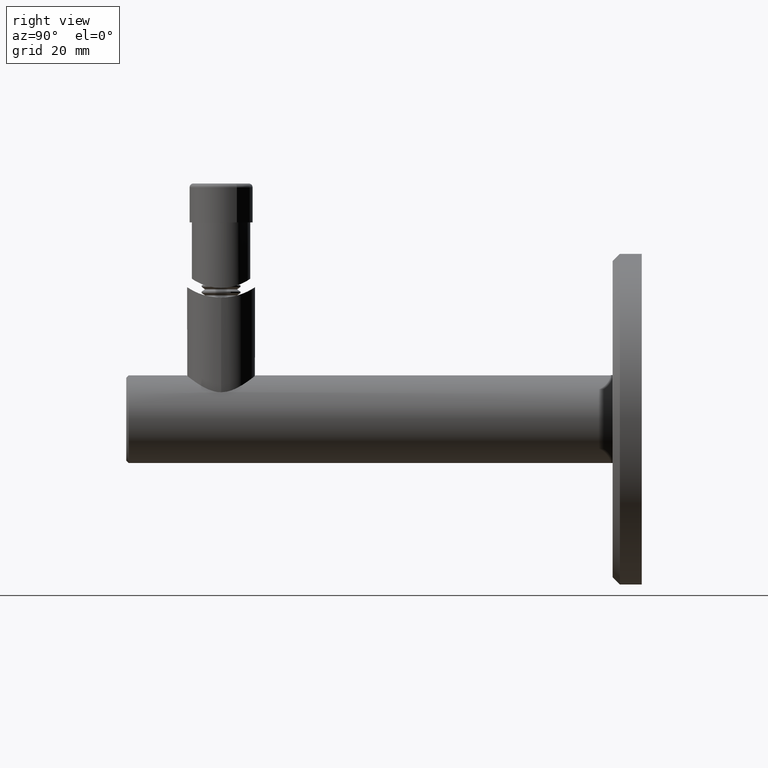
[diagram: clean part render]
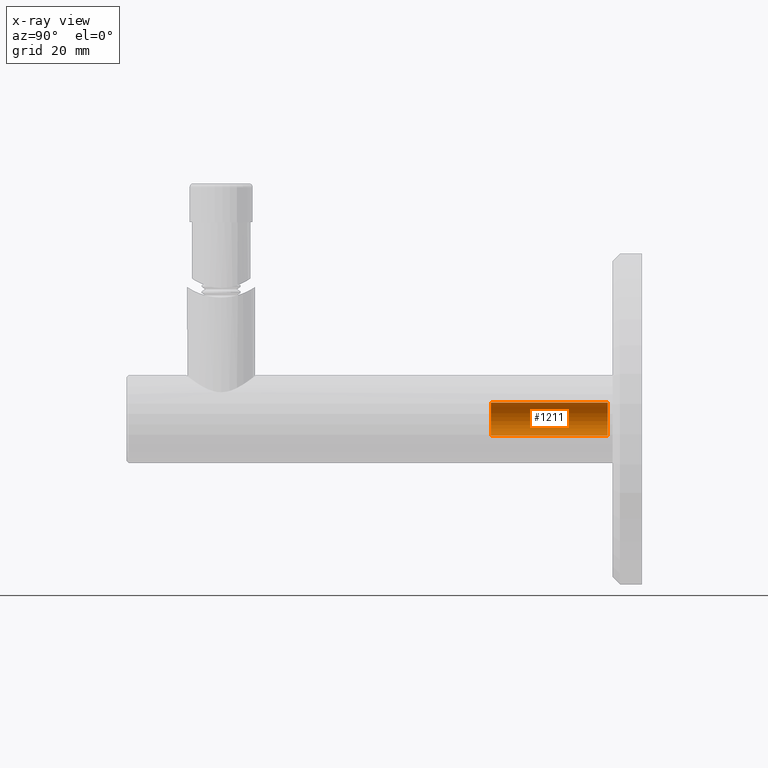
[diagram: x-ray — body ghosted, one internal face saturated and labeled with its STEP entity id]
A machine part, right view, then the same camera in x-ray: the body is ghosted and one INTERNAL B-rep face — a face not visible from any outside direction — is saturated and labeled: STEP entity #1211.
In plain terms, the highlighted cylindrical surface (edge-blend (fillet) strip) has radius 3.4 mm, axis along (0, 1, 0).
Its self-contained STEP definition (entity closure, byte-faithful):
#229 = CARTESIAN_POINT ( 'NONE',  ( 4.163799117100991685E-16, 49.00000000000001421, -3.399999999999992362 ) ) ;
#1004 = EDGE_CURVE ( 'NONE', #24488, #9413, #7086, .T. ) ;
#1211 = ADVANCED_FACE ( 'NONE', ( #20500 ), #8467, .F. ) ;
#1580 = VECTOR ( 'NONE', #11453, 1000.000000000000000 ) ;
#1881 = ORIENTED_EDGE ( 'NONE', *, *, #24393, .T. ) ;
#2290 = VECTOR ( 'NONE', #6439, 1000.000000000000000 ) ;
#2445 = EDGE_CURVE ( 'NONE', #6466, #9413, #24200, .T. ) ;
#3088 = CARTESIAN_POINT ( 'NONE',  ( 0.000000000000000000, 49.00000000000001421, 3.399999999999992362 ) ) ;
#3621 = CARTESIAN_POINT ( 'NONE',  ( 4.163799117100991685E-16, 50.00000000000000000, -3.399999999999992362 ) ) ;
#3628 = AXIS2_PLACEMENT_3D ( 'NONE', #20605, #18543, #6774 ) ;
#4061 = DIRECTION ( 'NONE',  ( 0.000000000000000000, 0.000000000000000000, 1.000000000000000000 ) ) ;
#4680 = AXIS2_PLACEMENT_3D ( 'NONE', #16047, #10173, #4061 ) ;
#6370 = ORIENTED_EDGE ( 'NONE', *, *, #2445, .F. ) ;
#6439 = DIRECTION ( 'NONE',  ( -0.000000000000000000, 1.000000000000000000, -0.000000000000000000 ) ) ;
#6466 = VERTEX_POINT ( 'NONE', #22666 ) ;
#6774 = DIRECTION ( 'NONE',  ( 0.000000000000000000, 0.000000000000000000, 1.000000000000000000 ) ) ;
#6882 = LINE ( 'NONE', #3621, #1580 ) ;
#6971 = DIRECTION ( 'NONE',  ( 0.000000000000000000, 0.000000000000000000, -1.000000000000000000 ) ) ;
#7086 = CIRCLE ( 'NONE', #10433, 3.399999999999992362 ) ;
#8467 = CYLINDRICAL_SURFACE ( 'NONE', #4680, 3.399999999999992362 ) ;
#8869 = CIRCLE ( 'NONE', #3628, 3.399999999999995026 ) ;
#9413 = VERTEX_POINT ( 'NONE', #3088 ) ;
#9535 = EDGE_CURVE ( 'NONE', #9756, #6466, #8869, .T. ) ;
#9756 = VERTEX_POINT ( 'NONE', #15710 ) ;
#10173 = DIRECTION ( 'NONE',  ( -0.000000000000000000, 1.000000000000000000, -0.000000000000000000 ) ) ;
#10433 = AXIS2_PLACEMENT_3D ( 'NONE', #11042, #18743, #6971 ) ;
#11042 = CARTESIAN_POINT ( 'NONE',  ( 0.000000000000000000, 49.00000000000001421, 0.000000000000000000 ) ) ;
#11453 = DIRECTION ( 'NONE',  ( -0.000000000000000000, 1.000000000000000000, -0.000000000000000000 ) ) ;
#14013 = ORIENTED_EDGE ( 'NONE', *, *, #9535, .F. ) ;
#15710 = CARTESIAN_POINT ( 'NONE',  ( 4.163799117100995136E-16, 25.00000000000000000, -3.399999999999995026 ) ) ;
#16047 = CARTESIAN_POINT ( 'NONE',  ( 0.000000000000000000, 50.00000000000000000, 0.000000000000000000 ) ) ;
#18543 = DIRECTION ( 'NONE',  ( -0.000000000000000000, 1.000000000000000000, -0.000000000000000000 ) ) ;
#18743 = DIRECTION ( 'NONE',  ( 0.000000000000000000, 1.000000000000000000, 0.000000000000000000 ) ) ;
#20023 = CARTESIAN_POINT ( 'NONE',  ( 0.000000000000000000, 50.00000000000000000, 3.399999999999992362 ) ) ;
#20323 = EDGE_LOOP ( 'NONE', ( #14013, #1881, #22152, #6370 ) ) ;
#20500 = FACE_OUTER_BOUND ( 'NONE', #20323, .T. ) ;
#20605 = CARTESIAN_POINT ( 'NONE',  ( 0.000000000000000000, 25.00000000000000000, 0.000000000000000000 ) ) ;
#22152 = ORIENTED_EDGE ( 'NONE', *, *, #1004, .T. ) ;
#22666 = CARTESIAN_POINT ( 'NONE',  ( 0.000000000000000000, 25.00000000000000000, 3.399999999999995026 ) ) ;
#24200 = LINE ( 'NONE', #20023, #2290 ) ;
#24393 = EDGE_CURVE ( 'NONE', #9756, #24488, #6882, .T. ) ;
#24488 = VERTEX_POINT ( 'NONE', #229 ) ;